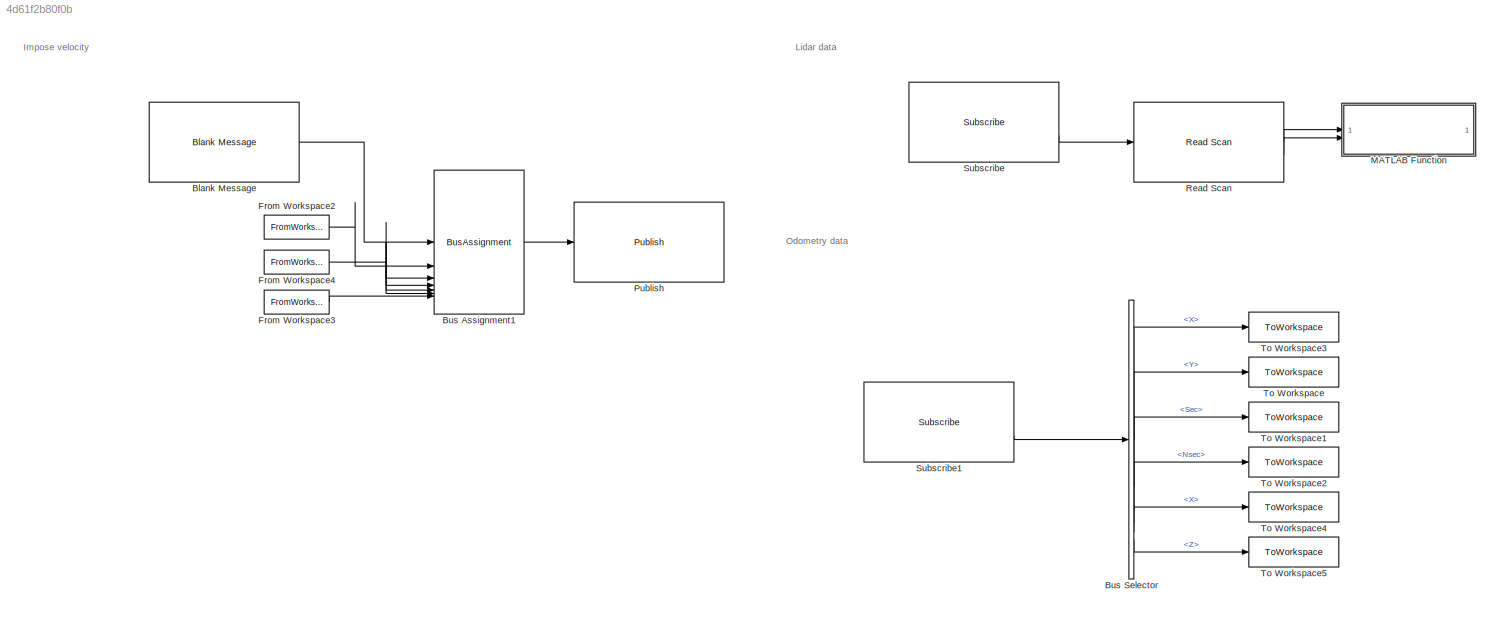
MODEL slx_4d61f2b80f0b
KIND model
CONFIG AbsTol = auto
CONFIG EnableMultiTasking = off
CONFIG FixedStep = 1/f_cmd
CONFIG MaxStep = auto
CONFIG MinStep = auto
CONFIG RelTol = 1e-3
CONFIG SampleTimeConstraint = Unconstrained
CONFIG SolverName = FixedStepAuto
CONFIG StartTime = time_cmd(1)
CONFIG StopTime = time_cmd(end)
WORKSPACE source: mxarray member
WORKSPACE SL_ROS_VariableLengthArrays_MaxSizes: object (value not decoded)
BLOCK [Reference] Blank Message  REF=robotlib/Blank Message
  SourceBlock = robotlib/Blank Message
  SourceType = ROS Blank Message
BLOCK [BusAssignment] Bus Assignment1
  AssignedSignals = Linear.X,Linear.Y,Linear.Z,Angular.X,Angular.Y,Angular.Z
BLOCK [BusSelector] Bus Selector
  OutputSignals = Pose.Pose.Position.X,Pose.Pose.Position.Y,Header.Stamp.Sec,Header.Stamp.Nsec,Twist.Twist.Linear.X,Twist.Twist.Angular.Z
BLOCK [FromWorkspace] From Workspace2
  SampleTime = 1/f_cmd
  VariableName = v_ts
BLOCK [FromWorkspace] From Workspace3
  SampleTime = 1/f_cmd
  VariableName = w_ts
BLOCK [FromWorkspace] From Workspace4
  SampleTime = 1/f_cmd
  VariableName = null
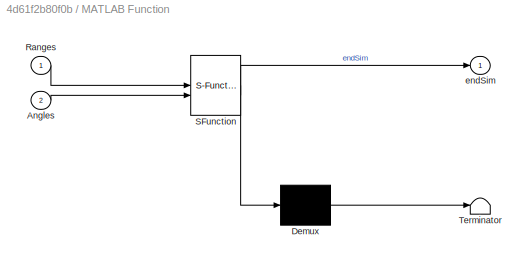
BLOCK [SubSystem] MATLAB Function
  Commented = on
  ErrorFcn = Stateflow.Translate.translate
  PermitHierarchicalResolution = ExplicitOnly
  SFBlockType = MATLAB Function
  TreatAsAtomicUnit = on
BLOCK [Demux] MATLAB Function/ Demux 
  Outputs = 1
BLOCK [S-Function] MATLAB Function/ SFunction 
  EnableBusSupport = on
  FunctionName = sf_sfun
  PortCounts = [2 2]
  SFcnIsStateOwnerBlock = off
  SFunctionDeploymentMode = off
  Tag = Stateflow S-Function 2
BLOCK [Terminator] MATLAB Function/ Terminator 
BLOCK [Inport] MATLAB Function/Angles
  Port = 2
BLOCK [Inport] MATLAB Function/Ranges
BLOCK [Outport] MATLAB Function/endSim
BLOCK [Reference] Publish  REF=robotlib/Publish
  SourceBlock = robotlib/Publish
  SourceType = ROS Publish
BLOCK [Reference] Read Scan  REF=robotlib/Read Scan
  Commented = on
  SourceBlock = robotlib/Read Scan
  SourceType = ros.slros.internal.block.ReadScan
BLOCK [Reference] Subscribe  REF=robotlib/Subscribe
  Commented = on
  SourceBlock = robotlib/Subscribe
  SourceType = ROS Subscribe
BLOCK [Reference] Subscribe1  REF=robotlib/Subscribe
  SourceBlock = robotlib/Subscribe
  SourceType = ROS Subscribe
BLOCK [ToWorkspace] To Workspace
  FixptAsFi = on
  MaxDataPoints = inf
  SampleTime = -1
  Save2DSignal = 2-D array (concatenate along first dimension)
  VariableName = y_sim
BLOCK [ToWorkspace] To Workspace1
  FixptAsFi = on
  MaxDataPoints = inf
  SampleTime = -1
  Save2DSignal = 2-D array (concatenate along first dimension)
  VariableName = sec_sim
BLOCK [ToWorkspace] To Workspace2
  FixptAsFi = on
  MaxDataPoints = inf
  SampleTime = -1
  Save2DSignal = 2-D array (concatenate along first dimension)
  VariableName = nsec_sim
BLOCK [ToWorkspace] To Workspace3
  FixptAsFi = on
  MaxDataPoints = inf
  SampleTime = -1
  Save2DSignal = 2-D array (concatenate along first dimension)
  VariableName = x_sim
BLOCK [ToWorkspace] To Workspace4
  FixptAsFi = on
  MaxDataPoints = inf
  SampleTime = -1
  Save2DSignal = 2-D array (concatenate along first dimension)
  VariableName = v_sim
BLOCK [ToWorkspace] To Workspace5
  FixptAsFi = on
  MaxDataPoints = inf
  SampleTime = -1
  Save2DSignal = 2-D array (concatenate along first dimension)
  VariableName = w_sim
ANNOTATION (root): Impose velocity
ANNOTATION (root): Lidar data
ANNOTATION (root): Odometry data
LINE Blank Message:1 -> Bus Assignment1:1
LINE Bus Assignment1:1 -> Publish:1
LINE Bus Selector:1 -> To Workspace3:1
LINE Bus Selector:2 -> To Workspace:1
LINE Bus Selector:3 -> To Workspace1:1
LINE Bus Selector:4 -> To Workspace2:1
LINE Bus Selector:5 -> To Workspace4:1
LINE Bus Selector:6 -> To Workspace5:1
LINE From Workspace2:1 -> Bus Assignment1:2
LINE From Workspace3:1 -> Bus Assignment1:7
NET From Workspace4:1 -> Bus Assignment1:3, Bus Assignment1:4, Bus Assignment1:5, Bus Assignment1:6
LINE Read Scan:1 -> MATLAB Function:1
LINE Read Scan:2 -> MATLAB Function:2
LINE Subscribe1:2 -> Bus Selector:1
LINE Subscribe:2 -> Read Scan:1
note: NET lines group one-source signal fan-out (src -> all destinations, sorted); 1:1 wires keep LINE
CHART MATLAB Function states=1 transitions=1
  STATE_LABEL 'eML_blk_kernel()'
  STATE_LABEL 'SCRIPT:\nfunction endSim = plotXY(Ranges,Angles)\n\n% Takes as input "Read Scan" block output and processes it to create a plot in\n% global XY reference. Only starts when at least some data different from \n% zero are provided (i.e. when the subscriber outputs a message).\n\nendSim = any(Ranges>0);\n\nif endSim\n\n    x = Ranges.*cos(Angles);\n    y = Ranges.*sin(Angles);\n\n    xValid = x(isfinite(x));\n    yV...<+259ch>'
CHART  states=0 transitions=0
